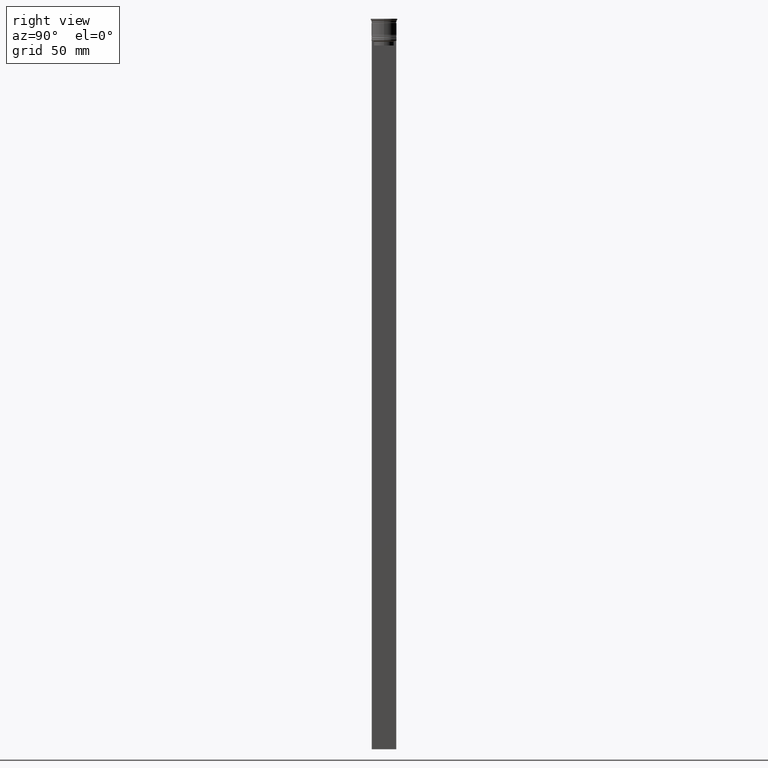
[diagram: clean part render]
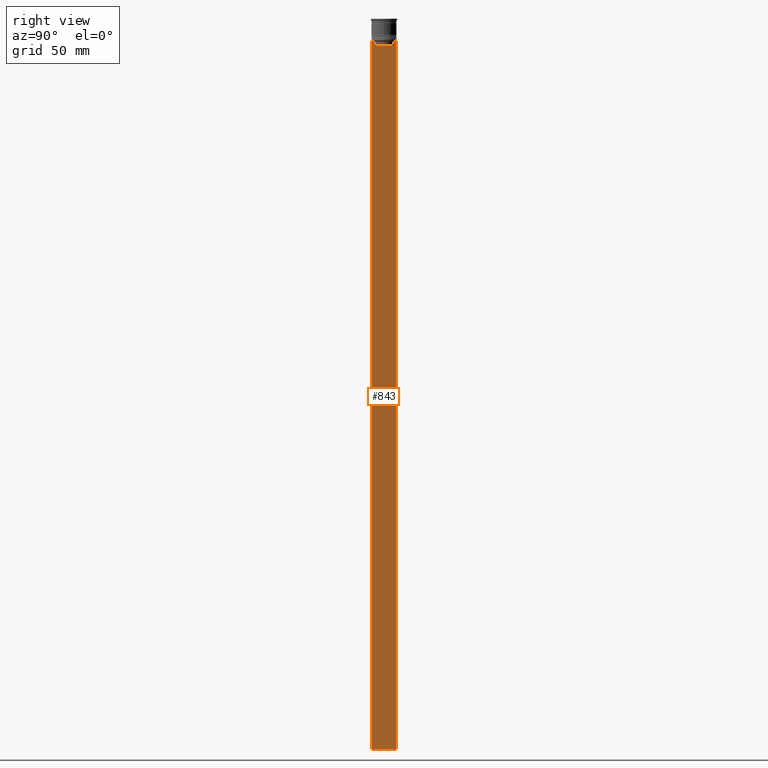
[diagram: same view with one face highlighted and labeled with its STEP entity id]
A machine part, right view. The second image highlights one B-rep face of the part: STEP entity #843.
In plain terms, the highlighted planar face has unit normal (-1, 0, 0).
Its self-contained STEP definition (entity closure, byte-faithful):
#4 = VERTEX_POINT ( 'NONE', #1543 ) ;
#10 = CARTESIAN_POINT ( 'NONE',  ( 0.5000000000000001110, -6.380438856379708312, 0.000000000000000000 ) ) ;
#65 = ORIENTED_EDGE ( 'NONE', *, *, #2371, .T. ) ;
#139 = LINE ( 'NONE', #1764, #1431 ) ;
#159 = CARTESIAN_POINT ( 'NONE',  ( 0.5000000000000001110, -7.749999999999999112, -14.00000000000000178 ) ) ;
#196 = CARTESIAN_POINT ( 'NONE',  ( 0.5000000000000001110, 6.399999999999999467, -17.00000000000000000 ) ) ;
#216 = EDGE_CURVE ( 'NONE', #4, #388, #1676, .T. ) ;
#251 = LINE ( 'NONE', #1366, #2054 ) ;
#270 = VERTEX_POINT ( 'NONE', #356 ) ;
#297 = ORIENTED_EDGE ( 'NONE', *, *, #1249, .T. ) ;
#305 = EDGE_CURVE ( 'NONE', #1838, #506, #1665, .T. ) ;
#348 = CARTESIAN_POINT ( 'NONE',  ( 0.5000000000000001110, 6.380438856379708312, -17.00000000000000000 ) ) ;
#356 = CARTESIAN_POINT ( 'NONE',  ( 0.5000000000000001110, 7.750000000000002665, -14.00000000000000178 ) ) ;
#369 = LINE ( 'NONE', #196, #386 ) ;
#386 = VECTOR ( 'NONE', #1460, 1000.000000000000000 ) ;
#388 = VERTEX_POINT ( 'NONE', #1501 ) ;
#412 = ORIENTED_EDGE ( 'NONE', *, *, #2009, .T. ) ;
#414 = CARTESIAN_POINT ( 'NONE',  ( 0.5000000000000001110, -7.749999999999999112, -464.0000000000000000 ) ) ;
#423 = DIRECTION ( 'NONE',  ( 0.000000000000000000, 0.000000000000000000, -1.000000000000000000 ) ) ;
#459 = ORIENTED_EDGE ( 'NONE', *, *, #2400, .T. ) ;
#482 = DIRECTION ( 'NONE',  ( 0.000000000000000000, 0.000000000000000000, -1.000000000000000000 ) ) ;
#483 = DIRECTION ( 'NONE',  ( 0.000000000000000000, 0.000000000000000000, 1.000000000000000000 ) ) ;
#506 = VERTEX_POINT ( 'NONE', #1977 ) ;
#512 = CARTESIAN_POINT ( 'NONE',  ( 0.5000000000000001110, -6.881860213634098500, -14.00000000000000178 ) ) ;
#592 = ORIENTED_EDGE ( 'NONE', *, *, #2208, .F. ) ;
#600 = CARTESIAN_POINT ( 'NONE',  ( 0.5000000000000001110, 6.380438856379708312, -14.50000000000000000 ) ) ;
#641 = LINE ( 'NONE', #658, #1359 ) ;
#648 = VECTOR ( 'NONE', #2391, 1000.000000000000000 ) ;
#658 = CARTESIAN_POINT ( 'NONE',  ( 0.5000000000000001110, 6.380438856379708312, 0.000000000000000000 ) ) ;
#843 = ADVANCED_FACE ( 'NONE', ( #2117 ), #1608, .F. ) ;
#864 = CARTESIAN_POINT ( 'NONE',  ( 0.5000000000000001110, 6.881860213634098500, -14.00000000000000178 ) ) ;
#951 = ORIENTED_EDGE ( 'NONE', *, *, #1453, .T. ) ;
#962 = VECTOR ( 'NONE', #2308, 1000.000000000000000 ) ;
#967 = VERTEX_POINT ( 'NONE', #159 ) ;
#1018 = VERTEX_POINT ( 'NONE', #600 ) ;
#1061 = CARTESIAN_POINT ( 'NONE',  ( 0.5000000000000001110, 6.547597841304911626, -14.33335192459222718 ) ) ;
#1115 = VECTOR ( 'NONE', #1445, 1000.000000000000000 ) ;
#1175 = CARTESIAN_POINT ( 'NONE',  ( 0.5000000000000001110, 6.881860213634098500, -14.00000000000000178 ) ) ;
#1249 = EDGE_CURVE ( 'NONE', #270, #1873, #2149, .T. ) ;
#1277 = CARTESIAN_POINT ( 'NONE',  ( 0.5000000000000001110, -7.749999999999999112, -464.0000000000000000 ) ) ;
#1359 = VECTOR ( 'NONE', #482, 1000.000000000000000 ) ;
#1366 = CARTESIAN_POINT ( 'NONE',  ( 0.5000000000000001110, 7.750000000000002665, 1.532224567009066840 ) ) ;
#1375 = ORIENTED_EDGE ( 'NONE', *, *, #2099, .T. ) ;
#1388 = CARTESIAN_POINT ( 'NONE',  ( 0.5000000000000001110, -7.749999999999999112, 1.532224567009066840 ) ) ;
#1411 = CARTESIAN_POINT ( 'NONE',  ( 0.5000000000000001110, 6.380438856379708312, -14.50000000000000000 ) ) ;
#1421 = B_SPLINE_CURVE_WITH_KNOTS ( 'NONE', 3,
 ( #864, #2165, #1061, #1411 ),
 .UNSPECIFIED., .F., .F.,
 ( 4, 4 ),
 ( 0.01172465562756038263, 0.01243276816391822651 ),
 .UNSPECIFIED. ) ;
#1431 = VECTOR ( 'NONE', #1611, 1000.000000000000000 ) ;
#1435 = EDGE_CURVE ( 'NONE', #1443, #967, #1991, .T. ) ;
#1443 = VERTEX_POINT ( 'NONE', #1662 ) ;
#1445 = DIRECTION ( 'NONE',  ( -0.000000000000000000, -0.000000000000000000, 1.000000000000000000 ) ) ;
#1446 = ORIENTED_EDGE ( 'NONE', *, *, #305, .T. ) ;
#1453 = EDGE_CURVE ( 'NONE', #967, #1838, #139, .T. ) ;
#1460 = DIRECTION ( 'NONE',  ( 0.000000000000000000, -1.000000000000000000, 0.000000000000000000 ) ) ;
#1471 = VECTOR ( 'NONE', #1480, 1000.000000000000000 ) ;
#1480 = DIRECTION ( 'NONE',  ( 0.000000000000000000, -1.000000000000000000, 0.000000000000000000 ) ) ;
#1500 = AXIS2_PLACEMENT_3D ( 'NONE', #1388, #2130, #483 ) ;
#1501 = CARTESIAN_POINT ( 'NONE',  ( 0.5000000000000001110, -6.380438856379708312, -14.50000000000000000 ) ) ;
#1543 = CARTESIAN_POINT ( 'NONE',  ( 0.5000000000000001110, -6.380438856379708312, -17.00000000000000000 ) ) ;
#1608 = PLANE ( 'NONE',  #1500 ) ;
#1611 = DIRECTION ( 'NONE',  ( 0.000000000000000000, 0.000000000000000000, -1.000000000000000000 ) ) ;
#1621 = CARTESIAN_POINT ( 'NONE',  ( 0.5000000000000001110, -6.714736947305993908, -14.16668390685738821 ) ) ;
#1627 = CARTESIAN_POINT ( 'NONE',  ( 0.5000000000000001110, -7.749999999999999112, -14.00000000000000178 ) ) ;
#1634 = ORIENTED_EDGE ( 'NONE', *, *, #1435, .T. ) ;
#1645 = VERTEX_POINT ( 'NONE', #348 ) ;
#1662 = CARTESIAN_POINT ( 'NONE',  ( 0.5000000000000001110, -6.881860213634098500, -14.00000000000000178 ) ) ;
#1665 = LINE ( 'NONE', #1277, #648 ) ;
#1676 = LINE ( 'NONE', #10, #1115 ) ;
#1764 = CARTESIAN_POINT ( 'NONE',  ( 0.5000000000000001110, -7.749999999999999112, 1.532224567009066840 ) ) ;
#1779 = B_SPLINE_CURVE_WITH_KNOTS ( 'NONE', 3,
 ( #2350, #1973, #1621, #512 ),
 .UNSPECIFIED., .F., .F.,
 ( 4, 4 ),
 ( 0.02996184199614751464, 0.03067452609193705923 ),
 .UNSPECIFIED. ) ;
#1786 = CARTESIAN_POINT ( 'NONE',  ( 0.5000000000000001110, -7.749999999999999112, -14.00000000000000178 ) ) ;
#1838 = VERTEX_POINT ( 'NONE', #414 ) ;
#1847 = EDGE_LOOP ( 'NONE', ( #297, #65, #459, #1375, #2337, #412, #1634, #951, #1446, #592 ) ) ;
#1873 = VERTEX_POINT ( 'NONE', #1175 ) ;
#1973 = CARTESIAN_POINT ( 'NONE',  ( 0.5000000000000001110, -6.547597841511247019, -14.33335192438652150 ) ) ;
#1977 = CARTESIAN_POINT ( 'NONE',  ( 0.5000000000000001110, 7.750000000000002665, -464.0000000000000000 ) ) ;
#1991 = LINE ( 'NONE', #1627, #1471 ) ;
#2009 = EDGE_CURVE ( 'NONE', #388, #1443, #1779, .T. ) ;
#2054 = VECTOR ( 'NONE', #423, 1000.000000000000000 ) ;
#2099 = EDGE_CURVE ( 'NONE', #1645, #4, #369, .T. ) ;
#2117 = FACE_OUTER_BOUND ( 'NONE', #1847, .T. ) ;
#2130 = DIRECTION ( 'NONE',  ( -1.000000000000000000, 0.000000000000000000, 0.000000000000000000 ) ) ;
#2149 = LINE ( 'NONE', #1786, #962 ) ;
#2165 = CARTESIAN_POINT ( 'NONE',  ( 0.5000000000000001110, 6.714736947114692711, -14.16668390704818847 ) ) ;
#2208 = EDGE_CURVE ( 'NONE', #270, #506, #251, .T. ) ;
#2308 = DIRECTION ( 'NONE',  ( 0.000000000000000000, -1.000000000000000000, 0.000000000000000000 ) ) ;
#2337 = ORIENTED_EDGE ( 'NONE', *, *, #216, .T. ) ;
#2350 = CARTESIAN_POINT ( 'NONE',  ( 0.5000000000000001110, -6.380438856379708312, -14.50000000000000000 ) ) ;
#2371 = EDGE_CURVE ( 'NONE', #1873, #1018, #1421, .T. ) ;
#2391 = DIRECTION ( 'NONE',  ( 0.000000000000000000, 1.000000000000000000, 0.000000000000000000 ) ) ;
#2400 = EDGE_CURVE ( 'NONE', #1018, #1645, #641, .T. ) ;